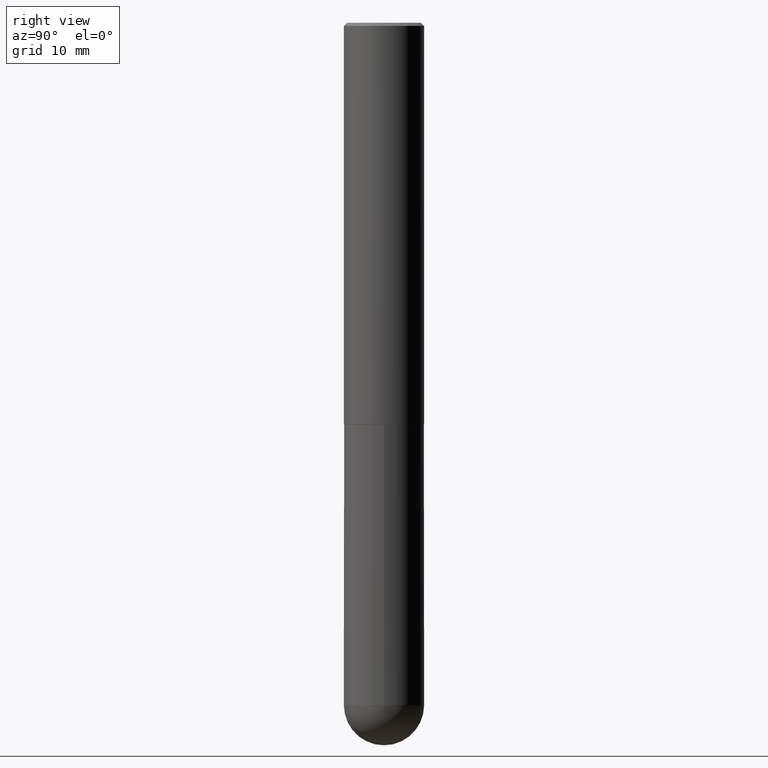
[diagram: clean part render]
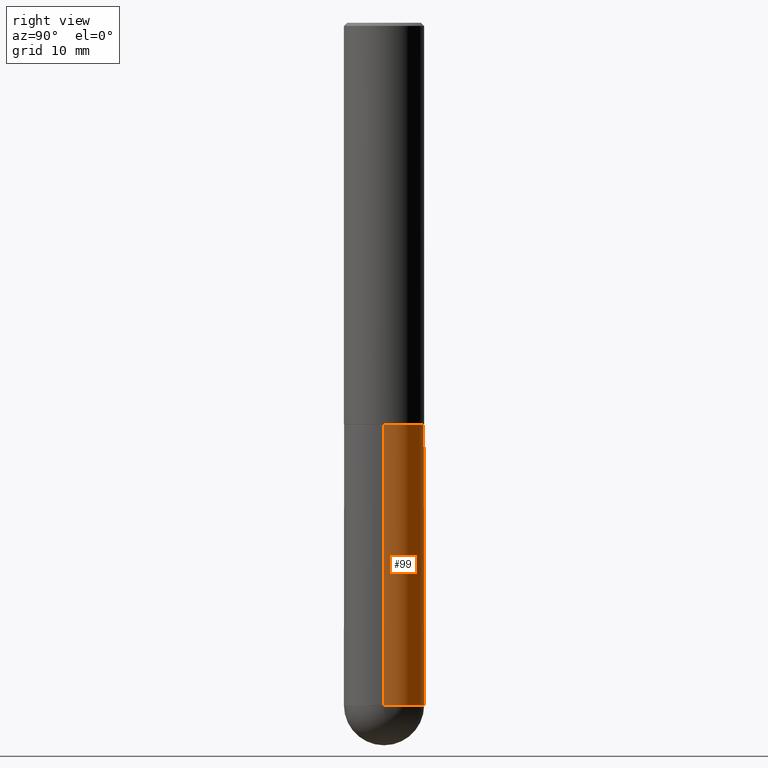
[diagram: same view with one face highlighted and labeled with its STEP entity id]
A machine part, right view. The second image highlights one B-rep face of the part: STEP entity #99.
In plain terms, the highlighted cylindrical surface (partial cylindrical patch) has radius 6.35 mm, axis along (-0, 0, 1).
Its self-contained STEP definition (entity closure, byte-faithful):
#16 = DIRECTION ( 'NONE',  ( 1.000000000000000000, -6.982962677686266711E-15, 4.876176775795935793E-29 ) ) ;
#34 = VERTEX_POINT ( 'NONE', #63 ) ;
#40 = AXIS2_PLACEMENT_3D ( 'NONE', #176, #271, #299 ) ;
#48 = CIRCLE ( 'NONE', #238, 0.2500000000000000000 ) ;
#55 = CARTESIAN_POINT ( 'NONE',  ( 1.039324242628683054E-28, -1.483879569008337040E-14, -4.250000000000000000 ) ) ;
#63 = CARTESIAN_POINT ( 'NONE',  ( 0.2500000000000000000, -1.047444401652943162E-14, -2.500000000000000000 ) ) ;
#76 = CARTESIAN_POINT ( 'NONE',  ( 0.2500000000000000000, -1.745740669421566678E-15, 1.219044193948983948E-29 ) ) ;
#78 = EDGE_CURVE ( 'NONE', #98, #377, #369, .T. ) ;
#84 = CIRCLE ( 'NONE', #40, 0.2500000000000000000 ) ;
#93 = DIRECTION ( 'NONE',  ( 1.000000000000000000, -6.982962677686266711E-15, 0.000000000000000000 ) ) ;
#94 = DIRECTION ( 'NONE',  ( 1.000000000000000000, -6.982962677686270655E-15, 0.000000000000000000 ) ) ;
#98 = VERTEX_POINT ( 'NONE', #400 ) ;
#99 = ADVANCED_FACE ( 'NONE', ( #180 ), #117, .T. ) ;
#117 = CYLINDRICAL_SURFACE ( 'NONE', #159, 0.2500000000000000000 ) ;
#120 = ORIENTED_EDGE ( 'NONE', *, *, #252, .T. ) ;
#123 = EDGE_CURVE ( 'NONE', #356, #34, #397, .T. ) ;
#136 = ORIENTED_EDGE ( 'NONE', *, *, #78, .T. ) ;
#159 = AXIS2_PLACEMENT_3D ( 'NONE', #362, #331, #16 ) ;
#160 = CIRCLE ( 'NONE', #329, 0.2500000000000000000 ) ;
#162 = EDGE_CURVE ( 'NONE', #186, #98, #84, .T. ) ;
#174 = DIRECTION ( 'NONE',  ( -2.445468806185136877E-29, 3.491481338843145188E-15, 1.000000000000000000 ) ) ;
#176 = CARTESIAN_POINT ( 'NONE',  ( 1.039324242628683054E-28, -1.483879569008337040E-14, -4.250000000000000000 ) ) ;
#180 = FACE_OUTER_BOUND ( 'NONE', #191, .T. ) ;
#186 = VERTEX_POINT ( 'NONE', #302 ) ;
#191 = EDGE_LOOP ( 'NONE', ( #352, #136, #312, #286, #120 ) ) ;
#203 = DIRECTION ( 'NONE',  ( -2.445468806185136877E-29, 3.491481338843145188E-15, 1.000000000000000000 ) ) ;
#238 = AXIS2_PLACEMENT_3D ( 'NONE', #55, #373, #94 ) ;
#252 = EDGE_CURVE ( 'NONE', #356, #186, #48, .T. ) ;
#271 = DIRECTION ( 'NONE',  ( -2.445468806185136597E-29, 3.491481338843145583E-15, 1.000000000000000000 ) ) ;
#286 = ORIENTED_EDGE ( 'NONE', *, *, #123, .F. ) ;
#299 = DIRECTION ( 'NONE',  ( 1.000000000000000000, -6.982962677686270655E-15, 0.000000000000000000 ) ) ;
#302 = CARTESIAN_POINT ( 'NONE',  ( 1.745740669421669032E-15, 0.2499999999999849842, -4.250000000000001776 ) ) ;
#312 = ORIENTED_EDGE ( 'NONE', *, *, #320, .F. ) ;
#320 = EDGE_CURVE ( 'NONE', #34, #377, #160, .T. ) ;
#329 = AXIS2_PLACEMENT_3D ( 'NONE', #339, #378, #93 ) ;
#331 = DIRECTION ( 'NONE',  ( -2.445468806185136597E-29, 3.491481338843145583E-15, 1.000000000000000000 ) ) ;
#339 = CARTESIAN_POINT ( 'NONE',  ( 6.113672015462842613E-29, -8.728703347107864943E-15, -2.500000000000000000 ) ) ;
#347 = CARTESIAN_POINT ( 'NONE',  ( -0.2500000000000000000, -1.000739267919536563E-14, -2.500000000000000000 ) ) ;
#348 = VECTOR ( 'NONE', #203, 39.37007874015748143 ) ;
#352 = ORIENTED_EDGE ( 'NONE', *, *, #162, .T. ) ;
#355 = VECTOR ( 'NONE', #174, 39.37007874015748143 ) ;
#356 = VERTEX_POINT ( 'NONE', #376 ) ;
#362 = CARTESIAN_POINT ( 'NONE',  ( 0.000000000000000000, 0.000000000000000000, 0.000000000000000000 ) ) ;
#369 = LINE ( 'NONE', #392, #355 ) ;
#373 = DIRECTION ( 'NONE',  ( -2.445468806185136597E-29, 3.491481338843145583E-15, 1.000000000000000000 ) ) ;
#376 = CARTESIAN_POINT ( 'NONE',  ( 0.2500000000000000000, -1.352949018801718751E-14, -4.250000000000000000 ) ) ;
#377 = VERTEX_POINT ( 'NONE', #347 ) ;
#378 = DIRECTION ( 'NONE',  ( -2.445468806185136597E-29, 3.491481338843145583E-15, 1.000000000000000000 ) ) ;
#392 = CARTESIAN_POINT ( 'NONE',  ( -0.2500000000000000000, 1.776356839400250465E-15, -1.229733772563726445E-29 ) ) ;
#397 = LINE ( 'NONE', #76, #348 ) ;
#400 = CARTESIAN_POINT ( 'NONE',  ( -0.2500000000000000000, -1.000739267919536879E-14, -4.250000000000000000 ) ) ;